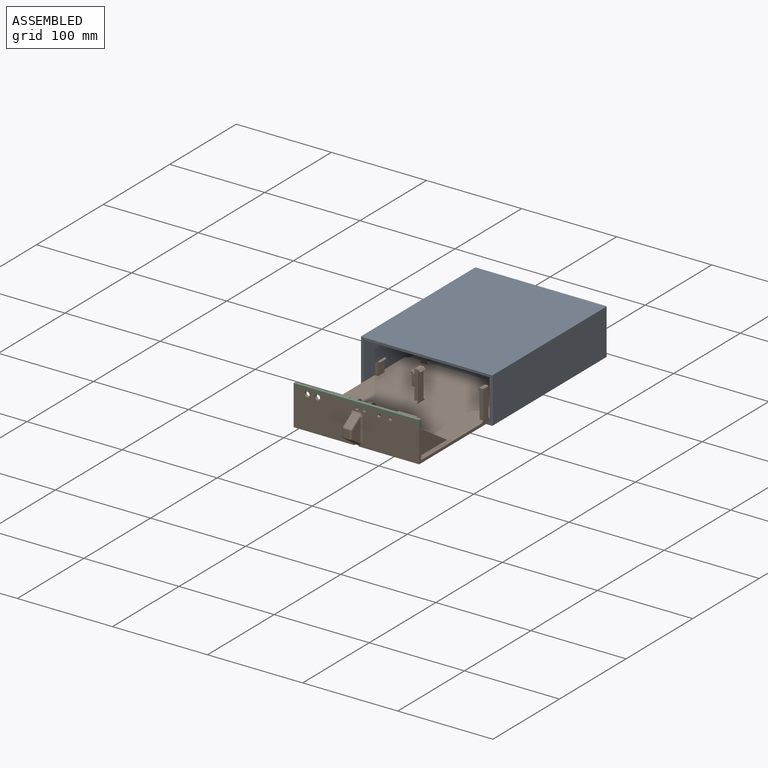
[diagram: assembled view]
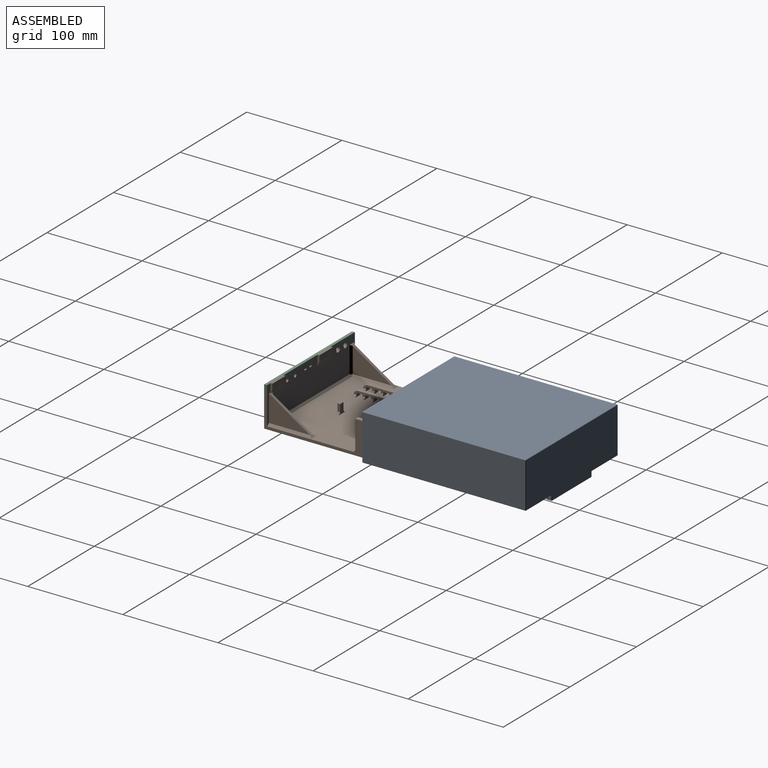
[diagram: assembled view, second angle]
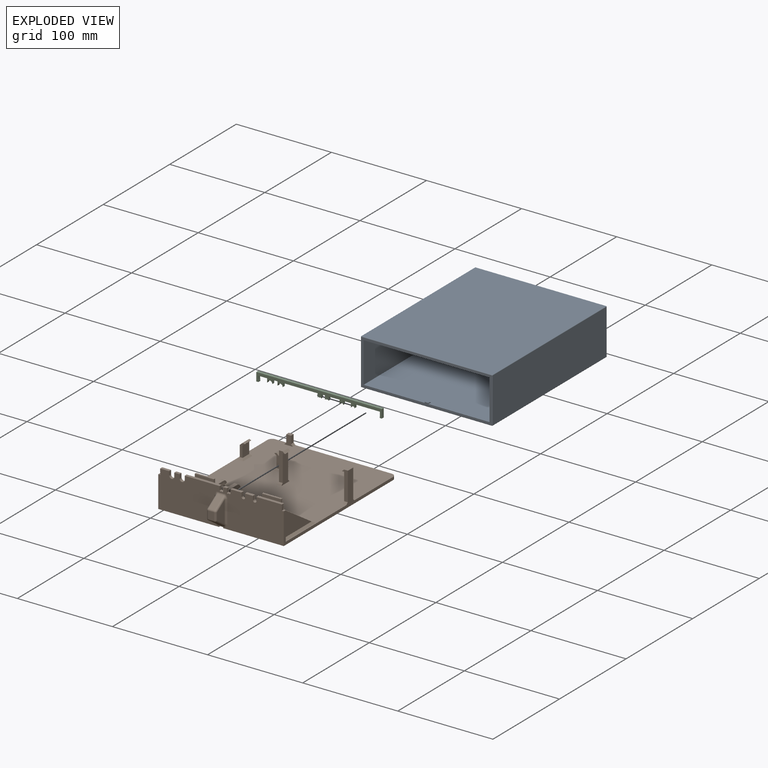
[diagram: exploded view]
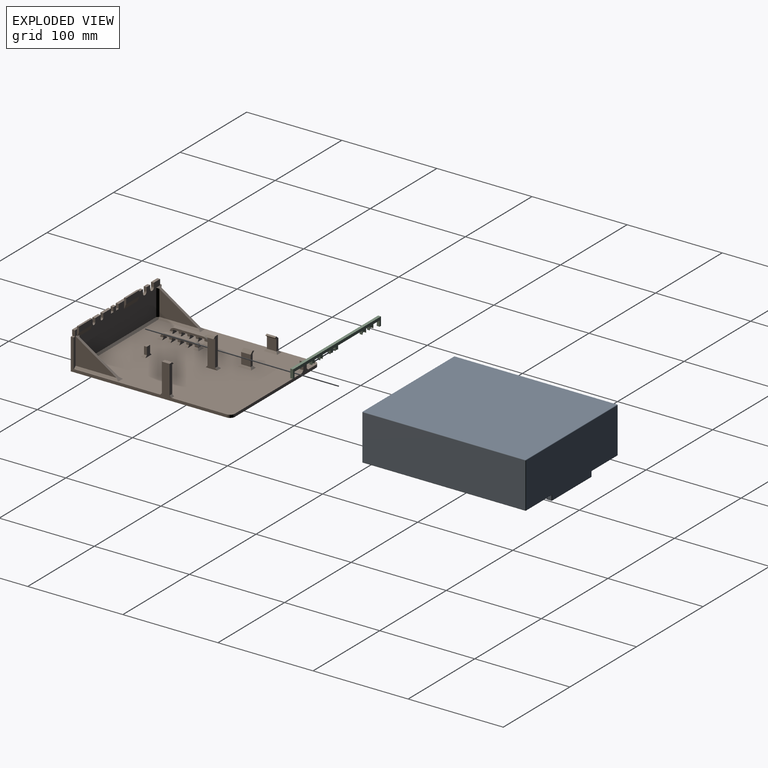
[diagram: exploded view, second angle]
ASSEMBLY  parts=3 mates=2
PART A: 85 faces, bbox 138.4x172x53.9 mm
  f0: plane 169x132.4mm, normal (0,0,1), area 22359.6mm2, adj f4,f5,f9,f11,f81,f82,f84
  f1: plane 137.4x52.9mm, normal (0,1,0), area 6837.7mm2, adj f38,f43,f47,f48,f50,f52,f54,f57
  f2: plane 171x137.4mm, normal (0,0,-1), area 23312.8mm2, adj f39,f40,f48,f49,f56,f57,f61,f68
  f3: plane 5x4.5mm, normal (-1,0,0), area 15.2mm2, adj f47,f55,f56,f65,f66,f67,f72
  f4: plane 169x42.4mm, normal (-1,0,0), area 6966.1mm2, adj f0,f5,f10,f11,f12,f14,f15,f20
  f5: plane 132.4x42.4mm, normal (0,-1,0), area 5607.2mm2, adj f0,f4,f9,f10,f12,f13,f14,f16
  f6: plane 171x47.4mm, normal (-1,0,0), area 8105.4mm2, adj f32,f34,f38,f39
  f7: plane 171x47.4mm, normal (1,0,0), area 8105.4mm2, adj f41,f42,f49,f50
  f8: plane 171x137.4mm, normal (0,0,1), area 23495.4mm2, adj f33,f34,f42,f43
  f9: plane 169x42.4mm, normal (1,0,0), area 6966.1mm2, adj f0,f5,f10,f11,f16,f17,f19,f22
  f10: plane 169x132.4mm, normal (0,0,-1), area 22375.6mm2, adj f4,f5,f9,f11
  f11: plane 137.4x47.4mm, normal (0,-1,0), area 903mm2, adj f0,f4,f9,f10,f32,f33,f40,f41
  f12: plane 99.3x2mm, normal (0,0,1), area 198.6mm2, adj f4,f5,f13,f21
  f13: plane 100x0.8mm, normal (-1,0,0), area 79.8mm2, adj f5,f12,f15,f21,f24
  f14: plane 99.3x0.8mm, normal (0,0,-1), area 79.4mm2, adj f4,f5,f20,f24
  f15: plane 2x0.6mm, normal (0,-1,0), area 1.1mm2, adj f4,f13,f20,f21,f24
  f16: plane 99.3x2mm, normal (0,0,1), area 198.6mm2, adj f5,f9,f18,f22
  f17: plane 99.3x0.8mm, normal (0,0,-1), area 79.4mm2, adj f5,f9,f23,f25
  f18: plane 100x0.8mm, normal (1,0,0), area 79.8mm2, adj f5,f16,f19,f22,f25
  f19: plane 2x0.6mm, normal (0,-1,0), area 1.1mm2, adj f9,f18,f22,f23,f25
  f20: plane 1.5x0.7mm, normal (0,-0.71,-0.71), area 1.1mm2, adj f4,f14,f15,f24
  f21: plane 2x0.7mm, normal (0,-0.71,0.71), area 2mm2, adj f4,f12,f13,f15
  f22: plane 2x0.7mm, normal (0,-0.71,0.71), area 2mm2, adj f9,f16,f18,f19
  f23: plane 1.5x0.7mm, normal (0,-0.71,-0.71), area 1.1mm2, adj f9,f17,f19,f25
  f24: plane 100x1.2mm, normal (-0.71,0,-0.71), area 169.4mm2, adj f5,f13,f14,f15,f20
  f25: plane 100x1.2mm, normal (0.71,0,-0.71), area 169.4mm2, adj f5,f17,f18,f19,f23
  f26: plane 5x4.5mm, normal (1,0,0), area 15.2mm2, adj f58,f63,f69,f74,f77,f79,f80
  f27: plane 59x1.5mm, normal (0,-1,0), area 88.5mm2, adj f67,f68,f76,f77
  f28: plane 59x5mm, normal (0,0,-1), area 295mm2, adj f54,f55,f63,f64
  f29: plane 59x2mm, normal (0,0,1), area 118mm2, adj f66,f75,f76,f80
  f30: plane 59x2mm, normal (0,-1,0), area 118mm2, adj f64,f65,f74,f75
  f31: sphere r=0.5mm, area 0.4mm2, adj f32,f33,f34
  f32: cylinder r=0.5mm len=47.4mm, axis (0,0,-1), area 37.2mm2, adj f6,f11,f31,f35
  f33: cylinder r=0.5mm len=137.4mm, axis (-1,0,0), area 107.9mm2, adj f8,f11,f31,f36
  f34: cylinder r=0.5mm len=171mm, axis (0,-1,0), area 134.3mm2, adj f6,f8,f31,f37
  f35: sphere r=0.5mm, area 0.4mm2, adj f32,f39,f40
  f36: sphere r=0.5mm, area 0.4mm2, adj f33,f41,f42
  f37: sphere r=0.5mm, area 0.4mm2, adj f34,f38,f43
  f38: cylinder r=0.5mm len=47.4mm, axis (0,0,1), area 37.2mm2, adj f1,f6,f37,f44
  f39: cylinder r=0.5mm len=171mm, axis (0,-1,0), area 134.3mm2, adj f2,f6,f35,f44
  f40: cylinder r=0.5mm len=137.4mm, axis (1,0,0), area 107.9mm2, adj f2,f11,f35,f45
  f41: cylinder r=0.5mm len=47.4mm, axis (0,0,1), area 37.2mm2, adj f7,f11,f36,f45
  f42: cylinder r=0.5mm len=171mm, axis (0,1,0), area 134.3mm2, adj f7,f8,f36,f46
  f43: cylinder r=0.5mm len=137.4mm, axis (1,0,0), area 107.9mm2, adj f1,f8,f37,f46
  f44: sphere r=0.5mm, area 0.4mm2, adj f38,f39,f48
  f45: sphere r=0.5mm, area 0.4mm2, adj f40,f41,f49
  f46: sphere r=0.5mm, area 0.4mm2, adj f42,f43,f50
  f47: cylinder r=0.5mm len=4.5mm, axis (0,0,1), area 3.5mm2, adj f1,f3,f51,f52
  f48: cylinder r=0.5mm len=38.2mm, axis (-1,0,0), area 30mm2, adj f1,f2,f44,f52
  f49: cylinder r=0.5mm len=171mm, axis (0,1,0), area 134.3mm2, adj f2,f7,f45,f53
  f50: cylinder r=0.5mm len=47.4mm, axis (0,0,-1), area 37.2mm2, adj f1,f7,f46,f53
  f51: sphere r=0.5mm, area 0.4mm2, adj f47,f54,f55
  f52: torus R=1mm, axis (0,-1,0), area 0.8mm2, adj f1,f47,f48,f56
  f53: sphere r=0.5mm, area 0.4mm2, adj f49,f50,f57
  f54: cylinder r=0.5mm len=59mm, axis (-1,0,0), area 46.3mm2, adj f1,f28,f51,f59
  f55: cylinder r=0.5mm len=5mm, axis (0,-1,0), area 3.9mm2, adj f3,f28,f51,f60
  f56: cylinder r=0.5mm len=2mm, axis (0,1,0), area 1.6mm2, adj f2,f3,f52,f61
  f57: cylinder r=0.5mm len=38.2mm, axis (-1,0,0), area 30mm2, adj f1,f2,f53,f62
  f58: cylinder r=0.5mm len=4.5mm, axis (0,0,1), area 3.5mm2, adj f1,f26,f59,f62
  f59: sphere r=0.5mm, area 0.4mm2, adj f54,f58,f63
  f60: sphere r=0.5mm, area 0.4mm2, adj f55,f64,f65
  f61: torus R=1mm, axis (0,0,-1), area 0.8mm2, adj f2,f56,f67,f68
  f62: torus R=1mm, axis (0,-1,0), area 0.8mm2, adj f1,f57,f58,f69
  f63: cylinder r=0.5mm len=5mm, axis (0,1,0), area 3.9mm2, adj f26,f28,f59,f70
  f64: cylinder r=0.5mm len=59mm, axis (1,0,0), area 46.3mm2, adj f28,f30,f60,f70
  f65: cylinder r=0.5mm len=2mm, axis (0,0,-1), area 1.6mm2, adj f3,f30,f60,f71
  f66: cylinder r=0.5mm len=2mm, axis (0,1,0), area 1.6mm2, adj f3,f29,f71,f72
  f67: cylinder r=0.5mm len=1.5mm, axis (0,0,-1), area 1.2mm2, adj f3,f27,f61,f72
  f68: cylinder r=0.5mm len=59mm, axis (-1,0,0), area 46.3mm2, adj f2,f27,f61,f73
  f69: cylinder r=0.5mm len=2mm, axis (0,-1,0), area 1.6mm2, adj f2,f26,f62,f73
  f70: sphere r=0.5mm, area 0.4mm2, adj f63,f64,f74
  f71: sphere r=0.5mm, area 0.4mm2, adj f65,f66,f75
  f72: torus R=1mm, axis (1,0,0), area 0.8mm2, adj f3,f66,f67,f76
  f73: torus R=1mm, axis (0,0,-1), area 0.8mm2, adj f2,f68,f69,f77
  f74: cylinder r=0.5mm len=2mm, axis (0,0,-1), area 1.6mm2, adj f26,f30,f70,f78
  f75: cylinder r=0.5mm len=59mm, axis (1,0,0), area 46.3mm2, adj f29,f30,f71,f78
  f76: cylinder r=0.5mm len=59mm, axis (-1,0,0), area 46.3mm2, adj f27,f29,f72,f79
  f77: cylinder r=0.5mm len=1.5mm, axis (0,0,-1), area 1.2mm2, adj f26,f27,f73,f79
  f78: sphere r=0.5mm, area 0.4mm2, adj f74,f75,f80
  f79: torus R=1mm, axis (-1,0,0), area 0.8mm2, adj f26,f76,f77,f80
  f80: cylinder r=0.5mm len=2mm, axis (0,1,0), area 1.6mm2, adj f26,f29,f78,f79
  f81: plane 4x1mm, normal (1,0,0), area 3mm2, adj f0,f11,f83,f84
  f82: plane 4x1mm, normal (-1,0,0), area 3mm2, adj f0,f11,f83,f84
  f83: plane 4x2mm, normal (0,0,1), area 8mm2, adj f11,f81,f82,f84
  f84: plane 4x2mm, normal (0,0.45,0.89), area 8.9mm2, adj f0,f81,f82,f83
PART B: 219 faces, bbox 132.2x184x42 mm
  f0: plane 36x5.06mm, normal (0,1,0), area 106.1mm2, adj f4,f12,f51,f52,f53,f54,f121,f123
  f1: plane 169x132mm, normal (0,0,-1), area 22270mm2, adj f2,f10,f11,f12,f116,f117,f176,f177
  f2: plane 132x39mm, normal (0,-1,0), area 4543.8mm2, adj f1,f11,f12,f51,f52,f53,f54,f55
  f3: plane 30x1mm, normal (0,1,0), area 30mm2, adj f4,f11,f85,f133
  f4: plane 166x132mm, normal (0,0,1), area 20311.6mm2, adj f0,f3,f10,f11,f12,f16,f32,f43
  f5: plane 122x34mm, normal (0,1,0), area 3542.3mm2, adj f54,f55,f56,f57,f58,f59,f60,f61
  f6: plane 39.8x4mm, normal (1,0,0), area 101.3mm2, adj f86,f100,f101,f102,f103,f104,f105,f106
  f7: plane 39.8x4mm, normal (-1,0,0), area 101.3mm2, adj f86,f100,f101,f102,f103,f104,f105,f106
  f8: plane 39.8x4mm, normal (1,0,0), area 101.3mm2, adj f87,f88,f89,f90,f91,f92,f93,f94
  f9: plane 39.8x4mm, normal (-1,0,0), area 101.3mm2, adj f87,f88,f89,f90,f91,f92,f93,f94
  f10: plane 122x13mm, normal (0,1,0), area 420mm2, adj f1,f4,f13,f14,f15,f116,f117,f174
  f11: plane 164x33mm, normal (-1,0,0), area 582mm2, adj f1,f2,f3,f4,f85,f116
  f12: plane 164x33mm, normal (1,0,0), area 586mm2, adj f0,f1,f2,f4,f31,f37,f38,f51
  f13: plane 8x4mm, normal (-1,0,0), area 32mm2, adj f10,f15,f16,f174
  f14: plane 8x4mm, normal (1,0,0), area 32mm2, adj f10,f15,f16,f175
  f15: plane 5x4mm, normal (0,0,1), area 20mm2, adj f10,f13,f14,f16
  f16: plane 10x9mm, normal (0,-1,0), area 54mm2, adj f4,f13,f14,f15,f174,f175
  f17: plane 10x2.25mm, normal (-0.66,0,-0.75), area 30mm2, adj f18,f21,f22,f23
  f18: plane 11.6x10mm, normal (-1,0,0), area 116mm2, adj f17,f22,f23,f166
  f19: plane 11.63x10mm, normal (1,0,0), area 116.3mm2, adj f20,f22,f23,f167
  f20: plane 10x3.03mm, normal (0.66,0,0.75), area 40.3mm2, adj f19,f21,f22,f23
  f21: plane 10x2.23mm, normal (-0.3,0,0.95), area 23.4mm2, adj f17,f20,f22,f23
  f22: plane 14.28x5.25mm, normal (0,-1,0), area 41.9mm2, adj f17,f18,f19,f20,f21,f168
  f23: plane 14.28x5.25mm, normal (0,1,0), area 41.9mm2, adj f17,f18,f19,f20,f21,f165
  f24: plane 11.63x10mm, normal (-1,0,0), area 116.3mm2, adj f28,f29,f30,f163
  f25: plane 11.6x10mm, normal (1,0,0), area 116mm2, adj f26,f29,f30,f162
  f26: plane 10x2.25mm, normal (0.66,0,-0.75), area 30mm2, adj f25,f27,f29,f30
  f27: plane 10x2.23mm, normal (0.3,0,0.95), area 23.4mm2, adj f26,f28,f29,f30
  f28: plane 10x3.03mm, normal (-0.66,0,0.75), area 40.3mm2, adj f24,f27,f29,f30
  f29: plane 14.28x5.25mm, normal (0,-1,0), area 41.9mm2, adj f24,f25,f26,f27,f28,f161
  f30: plane 14.28x5.25mm, normal (0,1,0), area 41.9mm2, adj f24,f25,f26,f27,f28,f164
  f31: plane 8x0.2mm, normal (0,0,-1), area 1.6mm2, adj f12,f33,f37,f38
  f32: plane 30x12mm, normal (-1,0,0), area 244mm2, adj f4,f36,f37,f38,f172,f173
  f33: plane 32x8mm, normal (1,0,0), area 256mm2, adj f31,f34,f37,f38
  f34: plane 8x4mm, normal (0,0,1), area 32mm2, adj f33,f35,f37,f38
  f35: plane 8x2.27mm, normal (-0.66,0,0.75), area 24.2mm2, adj f34,f36,f37,f38
  f36: plane 8x2.27mm, normal (0,0,-1), area 18.1mm2, adj f32,f35,f37,f38
  f37: plane 32x6.27mm, normal (0,-1,0), area 122.7mm2, adj f12,f31,f32,f33,f34,f35,f36,f173
  f38: plane 32x6.27mm, normal (0,1,0), area 122.7mm2, adj f12,f31,f32,f33,f34,f35,f36,f172
  f39: plane 8x2.27mm, normal (0,0,-1), area 18.1mm2, adj f40,f43,f44,f45
  f40: plane 8x2.27mm, normal (0.66,0,0.75), area 24.2mm2, adj f39,f41,f44,f45
  f41: plane 8x4mm, normal (0,0,1), area 32mm2, adj f40,f42,f44,f45
  f42: plane 30x8mm, normal (-1,0,0), area 240mm2, adj f41,f44,f45,f170
  f43: plane 30x12mm, normal (1,0,0), area 244mm2, adj f4,f39,f44,f45,f169,f171
  f44: plane 30x6.27mm, normal (0,-1,0), area 122.3mm2, adj f39,f40,f41,f42,f43,f169
  f45: plane 30x6.27mm, normal (0,1,0), area 122.3mm2, adj f39,f40,f41,f42,f43,f171
  f46: plane 8x3mm, normal (-1,0,0), area 24mm2, adj f48,f49,f50,f160
  f47: plane 8x3mm, normal (1,0,0), area 24mm2, adj f48,f49,f50,f158
  f48: plane 5x3mm, normal (0,0,1), area 15mm2, adj f46,f47,f49,f50
  f49: plane 8x5mm, normal (0,-1,0), area 40mm2, adj f46,f47,f48,f159
  f50: plane 10x9mm, normal (0,1,0), area 54mm2, adj f4,f46,f47,f48,f158,f160
  f51: plane 3x2.2mm, normal (0,0,1), area 6.6mm2, adj f0,f2,f12,f52
  f52: plane 3x3mm, normal (1,0,-0.07), area 9mm2, adj f0,f2,f51,f53
  f53: plane 3x3mm, normal (1,0,0), area 9mm2, adj f0,f2,f52,f54
  f54: plane 26.73x3.1mm, normal (0,0,1), area 82.2mm2, adj f0,f2,f5,f53,f55,f184,f185,f190
  f55: plane 3.93x3mm, normal (-1,0,0), area 11.8mm2, adj f2,f5,f54,f56
  f56: cylinder r=1.88mm len=3.75mm, axis (0,1,0), area 17.9mm2, adj f2,f5,f55,f57
  f57: plane 4x3mm, normal (1,0,0), area 12mm2, adj f2,f5,f56,f58
  f58: plane 8.25x3mm, normal (0,0,1), area 24.8mm2, adj f2,f5,f57,f59
  f59: plane 3.99x3mm, normal (-1,0,0), area 12mm2, adj f2,f5,f58,f60
  f60: cylinder r=1.88mm len=3.75mm, axis (0,1,0), area 17.7mm2, adj f2,f5,f59,f61
  f61: plane 4x3mm, normal (1,0,0), area 12mm2, adj f2,f5,f60,f62
  f62: plane 11.62x3mm, normal (0,0,1), area 34.9mm2, adj f2,f5,f61,f63
  f63: plane 4x3mm, normal (-1,0,0), area 12mm2, adj f2,f5,f62,f64
  f64: cylinder r=0.9mm len=3mm, axis (0,1,0), area 7.2mm2, adj f2,f5,f63,f65
  f65: plane 3x0.29mm, normal (0,0,1), area 0.9mm2, adj f2,f5,f64,f66
  f66: cylinder r=0.9mm len=3mm, axis (0,1,0), area 7.2mm2, adj f2,f5,f65,f67
  f67: plane 4x3mm, normal (1,0,0), area 12mm2, adj f2,f5,f66,f68
  f68: plane 4x3mm, normal (0,0,1), area 12mm2, adj f2,f5,f67,f69
  f69: plane 4x3mm, normal (-1,0,0), area 12mm2, adj f2,f5,f68,f70
  f70: cylinder r=0.9mm len=3mm, axis (0,1,0), area 7.2mm2, adj f2,f5,f69,f71
  f71: plane 3x0.29mm, normal (0,0,1), area 0.9mm2, adj f2,f5,f70,f72
  f72: cylinder r=0.9mm len=3mm, axis (0,1,0), area 7.2mm2, adj f2,f5,f71,f73
  f73: plane 4x3mm, normal (1,0,0), area 12mm2, adj f2,f5,f72,f74
  f74: plane 36.71x3.1mm, normal (0,0,1), area 112.1mm2, adj f2,f5,f73,f75,f180,f181,f188
  f75: plane 4x3mm, normal (-1,0,0), area 12mm2, adj f2,f5,f74,f76
  f76: cylinder r=2.7mm len=5.4mm, axis (0,1,0), area 25.4mm2, adj f2,f5,f75,f77
  f77: plane 4.03x3mm, normal (1,0,0.01), area 12.1mm2, adj f2,f5,f76,f78
  f78: plane 5.49x3mm, normal (0,0,1), area 16.5mm2, adj f2,f5,f77,f79
  f79: plane 3.94x3mm, normal (-1,0,0), area 11.8mm2, adj f2,f5,f78,f80
  f80: cylinder r=2.7mm len=5.4mm, axis (0,1,0), area 25.6mm2, adj f2,f5,f79,f81
  f81: plane 4x3mm, normal (1,0,0), area 12mm2, adj f2,f5,f80,f82
  f82: plane 9.46x3mm, normal (0,0,1), area 28.4mm2, adj f2,f5,f81,f83
  f83: plane 3x3mm, normal (-1,0,0), area 9mm2, adj f2,f5,f82,f84
  f84: plane 3x3mm, normal (-1,0,-0.07), area 9mm2, adj f2,f5,f83,f85
  f85: plane 3x2.2mm, normal (0,0,1), area 6.6mm2, adj f2,f3,f11,f84,f118
  f86: plane 30x4mm, normal (0,0,1), area 120mm2, adj f6,f7,f114,f115
  f87: plane 30x4mm, normal (0,0,1), area 120mm2, adj f8,f9,f112,f113
  f88: plane 8x4mm, normal (0,1,0), area 20mm2, adj f4,f8,f9,f89,f148,f149
  f89: plane 6x4mm, normal (0,0,-1), area 24mm2, adj f8,f9,f88,f90
  f90: plane 8x4mm, normal (0,-1,0), area 20mm2, adj f4,f8,f9,f89,f147,f153
  f91: plane 8x4mm, normal (0,1,0), area 20mm2, adj f4,f8,f9,f92,f147,f153
  f92: plane 6x4mm, normal (0,0,-1), area 24mm2, adj f8,f9,f91,f93
  f93: plane 8x4mm, normal (0,-1,0), area 20mm2, adj f4,f8,f9,f92,f146,f154
  f94: plane 8x4mm, normal (0,1,0), area 20mm2, adj f4,f8,f9,f95,f146,f154
  f95: plane 6x4mm, normal (0,0,-1), area 24mm2, adj f8,f9,f94,f96
  f96: plane 8x4mm, normal (0,-1,0), area 20mm2, adj f4,f8,f9,f95,f137,f138
  f97: plane 6x4mm, normal (0,0,-1), area 24mm2, adj f8,f9,f98,f99
  f98: plane 8x4mm, normal (0,-1,0), area 20mm2, adj f4,f8,f9,f97,f148,f149
  f99: plane 8x4mm, normal (0,1,0), area 20mm2, adj f4,f8,f9,f97,f143,f144
  f100: plane 8x4mm, normal (0,-1,0), area 20mm2, adj f4,f6,f7,f101,f151,f157
  f101: plane 6x4mm, normal (0,0,-1), area 24mm2, adj f6,f7,f100,f102
  f102: plane 8x4mm, normal (0,1,0), area 20mm2, adj f4,f6,f7,f101,f150,f156
  f103: plane 8x4mm, normal (0,-1,0), area 20mm2, adj f4,f6,f7,f104,f152,f155
  f104: plane 6x4mm, normal (0,0,-1), area 24mm2, adj f6,f7,f103,f105
  f105: plane 8x4mm, normal (0,1,0), area 20mm2, adj f4,f6,f7,f104,f151,f157
  f106: plane 8x4mm, normal (0,-1,0), area 20mm2, adj f4,f6,f7,f107,f134,f135
  f107: plane 6x4mm, normal (0,0,-1), area 24mm2, adj f6,f7,f106,f108
  f108: plane 8x4mm, normal (0,1,0), area 20mm2, adj f4,f6,f7,f107,f152,f155
  f109: plane 8x4mm, normal (0,1,0), area 20mm2, adj f4,f6,f7,f111,f140,f142
  f110: plane 8x4mm, normal (0,-1,0), area 20mm2, adj f4,f6,f7,f111,f150,f156
  f111: plane 6x4mm, normal (0,0,-1), area 24mm2, adj f6,f7,f109,f110
  f112: cylinder r=5mm len=4.95mm, axis (1,0,0), area 28.6mm2, adj f8,f9,f87,f137,f138,f139
  f113: cylinder r=5mm len=4.95mm, axis (-1,0,0), area 28.6mm2, adj f8,f9,f87,f143,f144,f145
  f114: cylinder r=5mm len=4.95mm, axis (1,0,0), area 28.6mm2, adj f6,f7,f86,f134,f135,f136
  f115: cylinder r=5mm len=4.95mm, axis (-1,0,0), area 28.6mm2, adj f6,f7,f86,f140,f141,f142
  f116: cylinder r=5mm len=5mm, axis (0,0,1), area 23.6mm2, adj f1,f4,f10,f11
  f117: cylinder r=5mm len=5mm, axis (0,0,-1), area 23.6mm2, adj f1,f4,f10,f12
  f118: plane 46.1x30mm, normal (0,0.55,0.84), area 177.1mm2, adj f4,f5,f85,f119,f120,f125,f126,f132
  f119: plane 41.02x26.7mm, normal (1,0,0), area 547.6mm2, adj f118,f125,f126
  f120: plane 41.02x26.7mm, normal (-1,0,0), area 547.6mm2, adj f118,f132,f133
  f121: plane 46.1x30mm, normal (0,0.55,0.84), area 172.8mm2, adj f0,f4,f122,f123,f124,f128,f131,f185
  f122: plane 41.02x26.7mm, normal (-1,0,0), area 547.6mm2, adj f121,f128,f131
  f123: plane 43.02x28mm, normal (1,0,0), area 602.3mm2, adj f0,f121,f124
  f124: plane 46.1x2mm, normal (0.71,0,0.71), area 126mm2, adj f0,f4,f121,f123
  f125: plane 28x2mm, normal (0.71,0.71,0), area 77.4mm2, adj f5,f118,f119,f127
  f126: plane 44.1x2mm, normal (0.71,0,0.71), area 120.4mm2, adj f4,f118,f119,f127
  f127: plane 2x2mm, normal (0.58,0.58,0.58), area 3.5mm2, adj f125,f126,f129
  f128: plane 27.6x2mm, normal (-0.71,0.71,0), area 76.5mm2, adj f5,f121,f122,f130,f192
  f129: plane 116x2mm, normal (0,0.71,0.71), area 328.1mm2, adj f4,f5,f127,f130
  f130: plane 2x2mm, normal (-0.58,0.58,0.58), area 3.5mm2, adj f128,f129,f131
  f131: plane 44.1x2mm, normal (-0.71,0,0.71), area 120.4mm2, adj f4,f121,f122,f130
  f132: plane 46.1x2mm, normal (-0.71,0,0.71), area 123.2mm2, adj f4,f118,f120,f133
  f133: plane 30x2mm, normal (-0.71,0.71,0), area 80.2mm2, adj f3,f118,f120,f132
  f134: plane 5.43x2mm, normal (0.71,0,0.71), area 12.1mm2, adj f4,f6,f106,f114,f136
  f135: plane 5.43x2mm, normal (-0.71,0,0.71), area 12.1mm2, adj f4,f7,f106,f114,f136
  f136: plane 8x1.98mm, normal (0,0.65,0.76), area 16.5mm2, adj f4,f114,f134,f135
  f137: plane 5.43x2mm, normal (0.71,0,0.71), area 12.1mm2, adj f4,f8,f96,f112,f139
  f138: plane 5.43x2mm, normal (-0.71,0,0.71), area 12.1mm2, adj f4,f9,f96,f112,f139
  f139: plane 8x1.98mm, normal (0,0.65,0.76), area 16.5mm2, adj f4,f112,f137,f138
  f140: plane 5.43x2mm, normal (0.71,0,0.71), area 12.1mm2, adj f4,f6,f109,f115,f141
  f141: plane 8x1.98mm, normal (0,-0.65,0.76), area 16.5mm2, adj f4,f115,f140,f142
  f142: plane 5.43x2mm, normal (-0.71,0,0.71), area 12.1mm2, adj f4,f7,f109,f115,f141
  f143: plane 5.43x2mm, normal (0.71,0,0.71), area 12.1mm2, adj f4,f8,f99,f113,f145
  f144: plane 5.43x2mm, normal (-0.71,0,0.71), area 12.1mm2, adj f4,f9,f99,f113,f145
  f145: plane 8x1.98mm, normal (0,-0.65,0.76), area 16.5mm2, adj f4,f113,f143,f144
  f146: plane 3x2mm, normal (-0.71,0,0.71), area 8.5mm2, adj f4,f9,f93,f94
  f147: plane 3x2mm, normal (-0.71,0,0.71), area 8.5mm2, adj f4,f9,f90,f91
  f148: plane 3x2mm, normal (-0.71,0,0.71), area 8.5mm2, adj f4,f9,f88,f98
  f149: plane 3x2mm, normal (0.71,0,0.71), area 8.5mm2, adj f4,f8,f88,f98
  f150: plane 3x2mm, normal (-0.71,0,0.71), area 8.5mm2, adj f4,f7,f102,f110
  f151: plane 3x2mm, normal (-0.71,0,0.71), area 8.5mm2, adj f4,f7,f100,f105
  f152: plane 3x2mm, normal (-0.71,0,0.71), area 8.5mm2, adj f4,f7,f103,f108
  f153: plane 3x2mm, normal (0.71,0,0.71), area 8.5mm2, adj f4,f8,f90,f91
  f154: plane 3x2mm, normal (0.71,0,0.71), area 8.5mm2, adj f4,f8,f93,f94
  f155: plane 3x2mm, normal (0.71,0,0.71), area 8.5mm2, adj f4,f6,f103,f108
  f156: plane 3x2mm, normal (0.71,0,0.71), area 8.5mm2, adj f4,f6,f102,f110
  f157: plane 3x2mm, normal (0.71,0,0.71), area 8.5mm2, adj f4,f6,f100,f105
  f158: plane 5x2mm, normal (0.71,0,0.71), area 11.3mm2, adj f4,f47,f50,f159
  f159: plane 9x2mm, normal (0,-0.71,0.71), area 19.8mm2, adj f4,f49,f158,f160
  f160: plane 5x2mm, normal (-0.71,0,0.71), area 11.3mm2, adj f4,f46,f50,f159
  f161: plane 7x2mm, normal (0,-0.71,0.71), area 14.1mm2, adj f4,f29,f162,f163
  f162: plane 14x2mm, normal (0.71,0,0.71), area 33.9mm2, adj f4,f25,f161,f164
  f163: plane 14x2mm, normal (-0.71,0,0.71), area 33.9mm2, adj f4,f24,f161,f164
  f164: plane 7x2mm, normal (0,0.71,0.71), area 14.1mm2, adj f4,f30,f162,f163
  f165: plane 7x2mm, normal (0,0.71,0.71), area 14.1mm2, adj f4,f23,f166,f167
  f166: plane 14x2mm, normal (-0.71,0,0.71), area 33.9mm2, adj f4,f18,f165,f168
  f167: plane 14x2mm, normal (0.71,0,0.71), area 33.9mm2, adj f4,f19,f165,f168
  f168: plane 7x2mm, normal (0,-0.71,0.71), area 14.1mm2, adj f4,f22,f166,f167
  f169: plane 6x2mm, normal (0,-0.71,0.71), area 14.1mm2, adj f4,f43,f44,f170
  f170: plane 12x2mm, normal (-0.71,0,0.71), area 28.3mm2, adj f4,f42,f169,f171
  f171: plane 6x2mm, normal (0,0.71,0.71), area 14.1mm2, adj f4,f43,f45,f170
  f172: plane 3.8x2mm, normal (0,0.71,0.71), area 10.7mm2, adj f4,f12,f32,f38
  f173: plane 3.8x2mm, normal (0,-0.71,0.71), area 10.7mm2, adj f4,f12,f32,f37
  f174: plane 4x2mm, normal (-0.71,0,0.71), area 11.3mm2, adj f4,f10,f13,f16
  f175: plane 4x2mm, normal (0.71,0,0.71), area 11.3mm2, adj f4,f10,f14,f16
  f176: plane 6.2x1mm, normal (-1,0,0), area 5.2mm2, adj f1,f2,f178,f179,f203
  f177: plane 6.2x1mm, normal (1,0,0), area 5.2mm2, adj f1,f2,f178,f179,f203
  f178: plane 4.4x4.2mm, normal (0,0,-1), area 18.5mm2, adj f176,f177,f179,f203
  f179: plane 4.4x2mm, normal (0,-0.45,-0.89), area 9.8mm2, adj f1,f176,f177,f178
  f180: plane 11x2.1mm, normal (-1,0,0), area 17.3mm2, adj f5,f74,f182,f183,f188,f189,f193
  f181: plane 11x2.1mm, normal (1,0,0), area 17.3mm2, adj f5,f74,f182,f183,f188,f189,f193
  f182: plane 20x0.1mm, normal (0,0,-1), area 2mm2, adj f180,f181,f183,f193
  f183: plane 20x6mm, normal (0,1,0), area 120mm2, adj f180,f181,f182,f189
  f184: plane 10.93x2.1mm, normal (-1,0,0), area 17.2mm2, adj f5,f54,f186,f187,f190,f191,f192
  f185: plane 9.4x2.1mm, normal (1,0,0), area 16.6mm2, adj f0,f54,f121,f186,f187,f190,f191,f192
  f186: plane 20x0.1mm, normal (0,0,-1), area 2mm2, adj f184,f185,f187,f192
  f187: plane 20x5.93mm, normal (0,1,0), area 118.7mm2, adj f184,f185,f186,f191
  f188: plane 20x3mm, normal (0,-1,0), area 60mm2, adj f74,f180,f181,f189
  f189: plane 20x2mm, normal (0,0,1), area 40mm2, adj f180,f181,f183,f188
  f190: plane 20x3mm, normal (0,-1,0), area 60mm2, adj f54,f184,f185,f191
  f191: plane 20x2mm, normal (0,0,1), area 40mm2, adj f184,f185,f187,f190
  f192: plane 20x5mm, normal (0,0.93,-0.37), area 103.4mm2, adj f5,f121,f128,f184,f185,f186
  f193: plane 20x5mm, normal (0,0.93,-0.37), area 107.7mm2, adj f5,f180,f181,f182
  f194: plane 22.53x11mm, normal (1,0,0), area 167.1mm2, adj f204,f213,f214,f218
  f195: plane 22.53x11mm, normal (-1,0,0), area 167.1mm2, adj f199,f202,f206,f207
  f196: plane 7.86x6mm, normal (0,-1,0), area 47.2mm2, adj f205,f206,f214,f215
  f197: plane 13.22x8.81mm, normal (0,-0.55,0.83), area 95.3mm2, adj f207,f212,f215,f218
  f198: plane 13.22x8.81mm, normal (0,-0.55,-0.83), area 95.3mm2, adj f199,f203,f204,f205
  f199: cylinder r=2mm len=14.33mm, axis (0,-0.83,0.55), area 46.9mm2, adj f195,f198,f200,f201
  f200: bspline ~4.81x4mm, area 12.9mm2, adj f2,f199,f202,f203
  f201: sphere r=2mm, area 3.9mm2, adj f199,f205,f206
  f202: cylinder r=2mm len=22.53mm, axis (0,0,-1), area 70.8mm2, adj f2,f195,f200,f208
  f203: cylinder r=2mm len=6mm, axis (-1,0,0), area 11.5mm2, adj f2,f176,f177,f178,f198,f200,f209
  f204: cylinder r=2mm len=14.33mm, axis (0,-0.83,0.55), area 46.9mm2, adj f194,f198,f209,f210
  f205: cylinder r=2mm len=6mm, axis (-1,0,0), area 11.8mm2, adj f196,f198,f201,f210
  f206: cylinder r=2mm len=7.86mm, axis (0,0,1), area 24.7mm2, adj f195,f196,f201,f211
  f207: cylinder r=2mm len=14.33mm, axis (0,-0.83,-0.55), area 46.9mm2, adj f195,f197,f208,f211
  f208: bspline ~5.02x4.7mm, area 12.9mm2, adj f2,f202,f207,f212
  f209: bspline ~4.81x4mm, area 12.9mm2, adj f2,f203,f204,f213
  f210: sphere r=2mm, area 3.9mm2, adj f204,f205,f214
  f211: sphere r=2mm, area 3.9mm2, adj f206,f207,f215
  f212: cylinder r=2mm len=6mm, axis (1,0,0), area 11.8mm2, adj f2,f197,f208,f216
  f213: cylinder r=2mm len=22.53mm, axis (0,0,1), area 70.8mm2, adj f2,f194,f209,f216
  f214: cylinder r=2mm len=7.86mm, axis (0,0,-1), area 24.7mm2, adj f194,f196,f210,f217
  f215: cylinder r=2mm len=6mm, axis (-1,0,0), area 11.8mm2, adj f196,f197,f211,f217
  f216: bspline ~5.64x4.17mm, area 12.9mm2, adj f2,f212,f213,f218
  f217: sphere r=2mm, area 3.9mm2, adj f214,f215,f218
  f218: cylinder r=2mm len=14.33mm, axis (0,-0.83,-0.55), area 46.9mm2, adj f194,f197,f216,f217
PART C: 40 faces, bbox 132x3x9 mm
  f0: plane 3x2.2mm, normal (0,0,-1), area 6.6mm2, adj f1,f37,f38,f39
  f1: plane 9x3mm, normal (1,0,0), area 27mm2, adj f0,f2,f38,f39
  f2: plane 132x3mm, normal (0,0,1), area 396mm2, adj f1,f3,f38,f39
  f3: plane 9x3mm, normal (-1,0,0), area 27mm2, adj f2,f4,f38,f39
  f4: plane 3x2.2mm, normal (0,0,-1), area 6.6mm2, adj f3,f5,f38,f39
  f5: plane 3x3mm, normal (1,0,0.07), area 9mm2, adj f4,f6,f38,f39
  f6: plane 3x3mm, normal (1,0,0), area 9mm2, adj f5,f7,f38,f39
  f7: plane 9.46x3mm, normal (0,0,-1), area 28.4mm2, adj f6,f8,f38,f39
  f8: plane 4x3mm, normal (-1,0,0), area 12mm2, adj f7,f9,f38,f39
  f9: cylinder r=2.7mm len=5.4mm, axis (0,1,0), area 25.3mm2, adj f8,f10,f38,f39
  f10: plane 3.94x3mm, normal (1,0,0), area 11.8mm2, adj f9,f11,f38,f39
  f11: plane 5.49x3mm, normal (0,0,-1), area 16.5mm2, adj f10,f12,f38,f39
  f12: plane 4.03x3mm, normal (-1,0,-0.01), area 12.1mm2, adj f11,f13,f38,f39
  f13: cylinder r=2.7mm len=5.4mm, axis (0,1,0), area 25.5mm2, adj f12,f14,f38,f39
  f14: plane 4x3mm, normal (1,0,0), area 12mm2, adj f13,f15,f38,f39
  f15: plane 36.71x3mm, normal (0,0,-1), area 110.1mm2, adj f14,f16,f38,f39
  f16: plane 4x3mm, normal (-1,0,0), area 12mm2, adj f15,f17,f38,f39
  f17: cylinder r=0.9mm len=3mm, axis (0,1,0), area 7.2mm2, adj f16,f18,f38,f39
  f18: plane 3x0.29mm, normal (0,0,-1), area 0.9mm2, adj f17,f19,f38,f39
  f19: cylinder r=0.9mm len=3mm, axis (0,1,0), area 7.2mm2, adj f18,f20,f38,f39
  f20: plane 4x3mm, normal (1,0,0), area 12mm2, adj f19,f21,f38,f39
  f21: plane 4x3mm, normal (0,0,-1), area 12mm2, adj f20,f22,f38,f39
  f22: plane 4x3mm, normal (-1,0,0), area 12mm2, adj f21,f23,f38,f39
  f23: cylinder r=0.9mm len=3mm, axis (0,1,0), area 7.2mm2, adj f22,f24,f38,f39
  f24: plane 3x0.29mm, normal (0,0,-1), area 0.9mm2, adj f23,f25,f38,f39
  f25: cylinder r=0.9mm len=3mm, axis (0,1,0), area 7.2mm2, adj f24,f26,f38,f39
  f26: plane 4x3mm, normal (1,0,0), area 12mm2, adj f25,f27,f38,f39
  f27: plane 11.62x3mm, normal (0,0,-1), area 34.9mm2, adj f26,f28,f38,f39
  f28: plane 4x3mm, normal (-1,0,0), area 12mm2, adj f27,f29,f38,f39
  f29: cylinder r=1.88mm len=3.75mm, axis (0,1,0), area 17.6mm2, adj f28,f30,f38,f39
  f30: plane 3.99x3mm, normal (1,0,0), area 12mm2, adj f29,f31,f38,f39
  f31: plane 8.25x3mm, normal (0,0,-1), area 24.8mm2, adj f30,f32,f38,f39
  f32: plane 4x3mm, normal (-1,0,0), area 12mm2, adj f31,f33,f38,f39
  f33: cylinder r=1.88mm len=3.75mm, axis (0,1,0), area 17.5mm2, adj f32,f34,f38,f39
  f34: plane 3.93x3mm, normal (1,0,0), area 11.8mm2, adj f33,f35,f38,f39
  f35: plane 26.73x3mm, normal (0,0,-1), area 80.2mm2, adj f34,f36,f38,f39
  f36: plane 3x3mm, normal (-1,0,0), area 9mm2, adj f35,f37,f38,f39
  f37: plane 3x3mm, normal (-1,0,0.07), area 9mm2, adj f0,f36,f38,f39
  f38: plane 132x9mm, normal (0,-1,0), area 484.3mm2, adj f0,f1,f2,f3,f4,f5,f6,f7
  f39: plane 132x9mm, normal (0,1,0), area 484.3mm2, adj f0,f1,f2,f3,f4,f5,f6,f7
PLACE A t=(77.29,342.1,8.95)mm
PLACE B t=(77.29,67.79,8.75)mm
PLACE C t=(77.29,67.79,8.75)mm
MATE slider B.f10 <-> A.f5  axis (0,1,0) through (77.29,67.79,8.75)mm
MATE fastened C.f11 <-> B.f78  axis (0,0,-1) through (30.89,-99.71,47.75)mm
